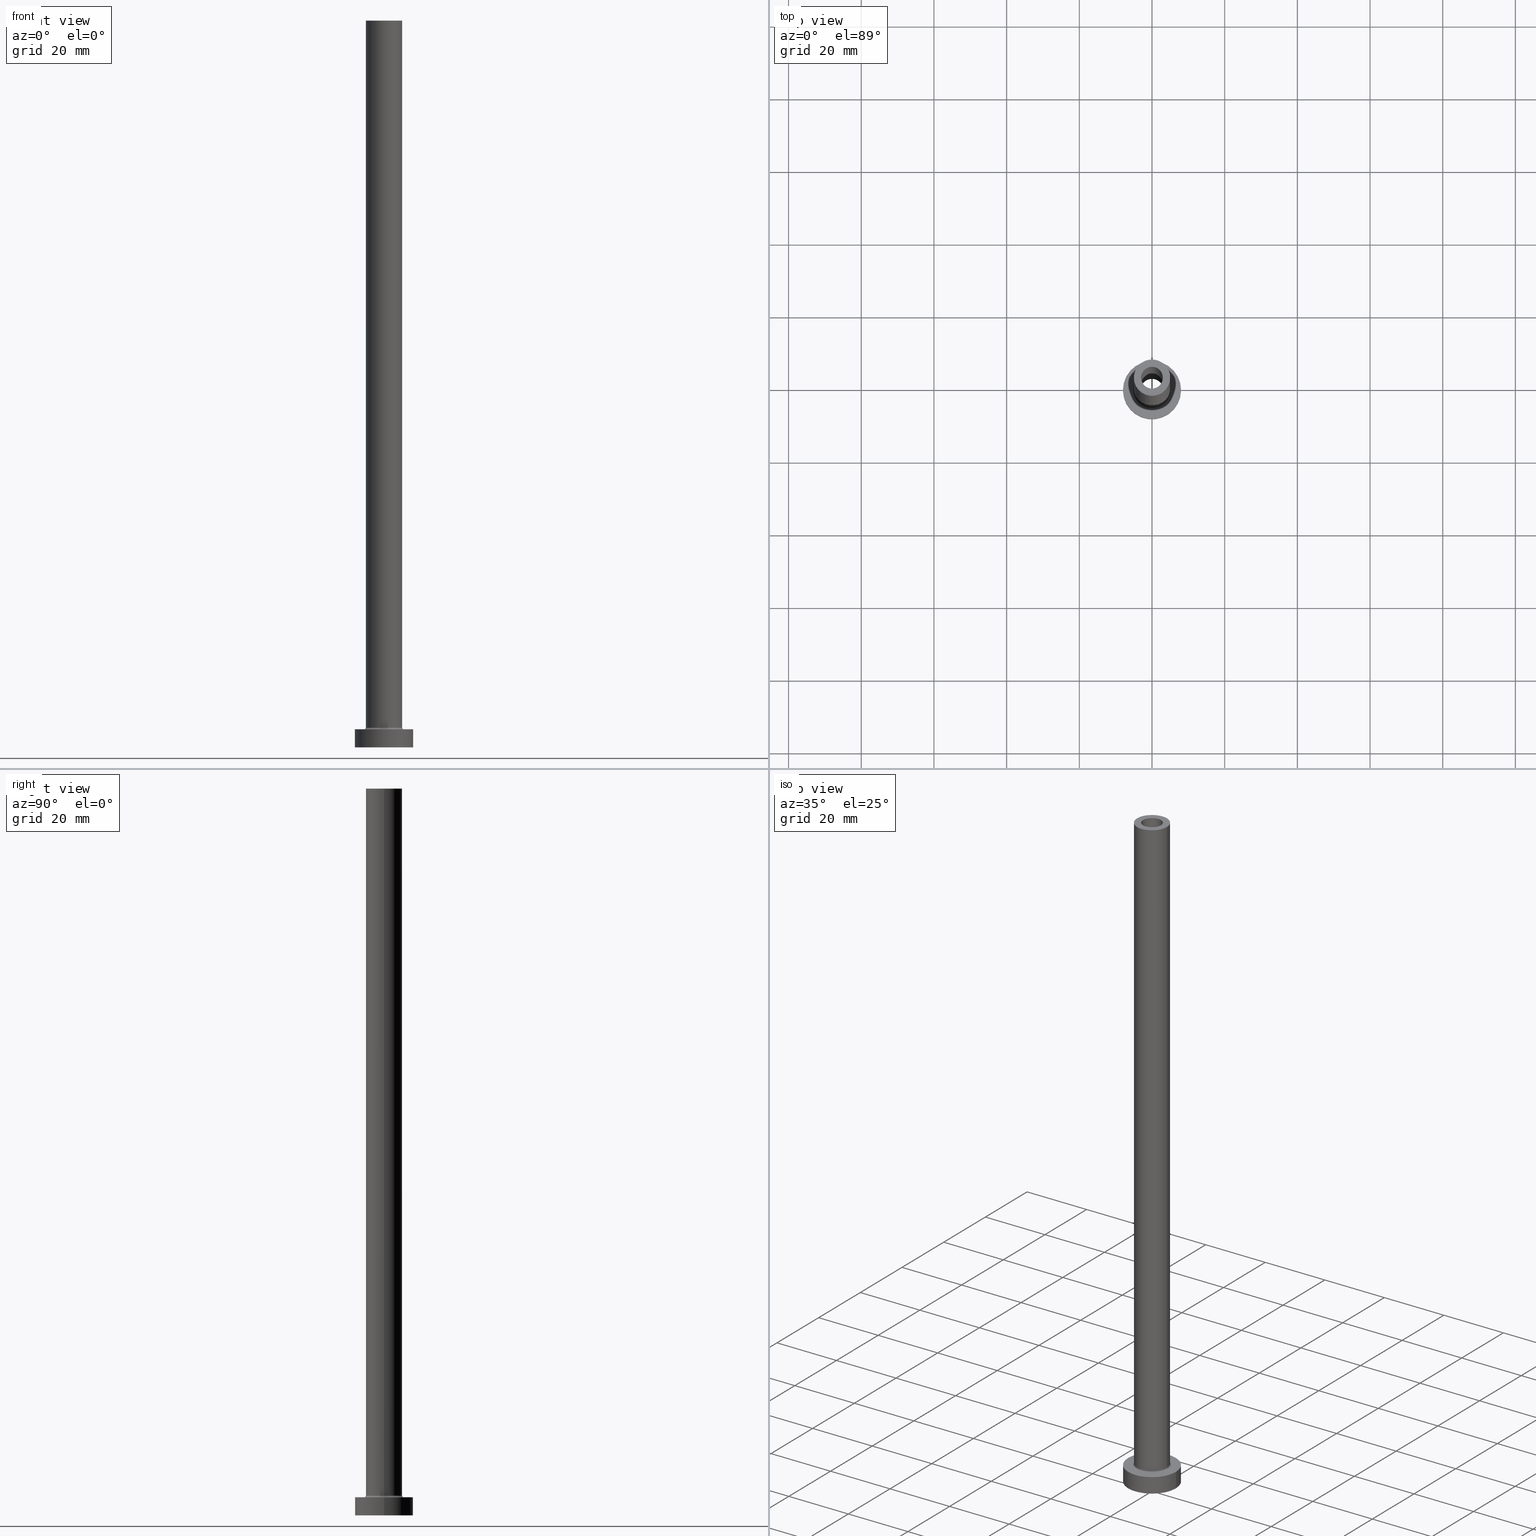
[diagram: canonical four-view strip — front | top / right | iso, engineering-drawing reading convention]
A machine part, canonical four-view strip (front | top / right | iso — engineering-drawing reading convention). The complete STEP part file that produces these views, byte-faithful:
ISO-10303-21;
HEADER;
FILE_DESCRIPTION (( 'STEP AP203' ),
    '1' );
FILE_NAME ('994f.STEP',
    '2023-02-13T09:13:47',
    ( '' ),
    ( '' ),
    'SwSTEP 2.0',
    'SolidWorks 2019',
    '' );
FILE_SCHEMA (( 'CONFIG_CONTROL_DESIGN' ));
ENDSEC;

DATA;
#1 = ORIENTED_EDGE ( 'NONE', *, *, #377, .F. ) ;
#2 = COORDINATED_UNIVERSAL_TIME_OFFSET ( 1, 0, .AHEAD. ) ;
#3 = FACE_OUTER_BOUND ( 'NONE', #280, .T. ) ;
#4 = CIRCLE ( 'NONE', #20, 3.000000000000000444 ) ;
#5 = CYLINDRICAL_SURFACE ( 'NONE', #429, 8.000000000000000000 ) ;
#6 = DIRECTION ( 'NONE',  ( 0.000000000000000000, 0.000000000000000000, -1.000000000000000000 ) ) ;
#7 = DIRECTION ( 'NONE',  ( 1.000000000000000000, 0.000000000000000000, 0.000000000000000000 ) ) ;
#8 = DIRECTION ( 'NONE',  ( -0.000000000000000000, -0.000000000000000000, -1.000000000000000000 ) ) ;
#9 = APPROVAL_STATUS ( 'not_yet_approved' ) ;
#10 = AXIS2_PLACEMENT_3D ( 'NONE', #53, #197, #333 ) ;
#11 = DIRECTION ( 'NONE',  ( -0.000000000000000000, -0.000000000000000000, -1.000000000000000000 ) ) ;
#12 = DIRECTION ( 'NONE',  ( 0.000000000000000000, 0.000000000000000000, 1.000000000000000000 ) ) ;
#13 = FACE_OUTER_BOUND ( 'NONE', #116, .T. ) ;
#14 = EDGE_LOOP ( 'NONE', ( #96, #445, #376, #342 ) ) ;
#15 = ADVANCED_FACE ( 'NONE', ( #322, #149 ), #220, .T. ) ;
#16 = CC_DESIGN_DATE_AND_TIME_ASSIGNMENT ( #162, #296, ( #50 ) ) ;
#17 = AXIS2_PLACEMENT_3D ( 'NONE', #236, #329, #225 ) ;
#18 = CARTESIAN_POINT ( 'NONE',  ( -3.150000000000000355, 0.000000000000000000, 0.000000000000000000 ) ) ;
#19 = DIRECTION ( 'NONE',  ( 0.000000000000000000, 0.000000000000000000, 1.000000000000000000 ) ) ;
#20 = AXIS2_PLACEMENT_3D ( 'NONE', #379, #19, #131 ) ;
#21 = EDGE_CURVE ( 'NONE', #122, #55, #346, .T. ) ;
#22 = LOCAL_TIME ( 10, 13, 47.00000000000000000, #332 ) ;
#23 = CARTESIAN_POINT ( 'NONE',  ( -8.000000000000000000, 0.000000000000000000, 0.000000000000000000 ) ) ;
#24 = EDGE_LOOP ( 'NONE', ( #287, #112 ) ) ;
#25 = CARTESIAN_POINT ( 'NONE',  ( 5.500000000000000000, 0.000000000000000000, 5.000000000000002665 ) ) ;
#26 = CARTESIAN_POINT ( 'NONE',  ( 0.000000000000000000, 0.000000000000000000, 155.0000000000000284 ) ) ;
#27 = CALENDAR_DATE ( 2023, 13, 2 ) ;
#28 = VERTEX_POINT ( 'NONE', #215 ) ;
#29 = TOROIDAL_SURFACE ( 'NONE', #99, 5.500000000000000000, 0.5000000000000000000 ) ;
#30 = ORIENTED_EDGE ( 'NONE', *, *, #120, .F. ) ;
#31 = MECHANICAL_CONTEXT ( 'NONE', #228, 'mechanical' ) ;
#32 = VERTEX_POINT ( 'NONE', #43 ) ;
#33 = PRODUCT_DEFINITION ( 'NEZN�M�', '', #319, #397 ) ;
#34 = DIRECTION ( 'NONE',  ( 1.000000000000000000, 0.000000000000000000, 0.000000000000000000 ) ) ;
#35 = AXIS2_PLACEMENT_3D ( 'NONE', #261, #86, #169 ) ;
#36 = APPROVAL_STATUS ( 'not_yet_approved' ) ;
#37 = CARTESIAN_POINT ( 'NONE',  ( 0.000000000000000000, 0.000000000000000000, 0.000000000000000000 ) ) ;
#38 = PERSON_AND_ORGANIZATION ( #391, #130 ) ;
#39 = CC_DESIGN_APPROVAL ( #160, ( #50 ) ) ;
#40 = DIRECTION ( 'NONE',  ( 1.000000000000000000, 0.000000000000000000, 0.000000000000000000 ) ) ;
#41 = EDGE_CURVE ( 'NONE', #231, #79, #201, .T. ) ;
#42 = CC_DESIGN_PERSON_AND_ORGANIZATION_ASSIGNMENT ( #375, #62, ( #33 ) ) ;
#43 = CARTESIAN_POINT ( 'NONE',  ( -3.000000000000000444, 0.000000000000000000, 155.0000000000000284 ) ) ;
#44 = CALENDAR_DATE ( 2023, 13, 2 ) ;
#45 = EDGE_LOOP ( 'NONE', ( #412, #30, #217, #173 ) ) ;
#46 = AXIS2_PLACEMENT_3D ( 'NONE', #409, #263, #227 ) ;
#47 = DIRECTION ( 'NONE',  ( 0.000000000000000000, 0.000000000000000000, -1.000000000000000000 ) ) ;
#48 = FACE_OUTER_BOUND ( 'NONE', #14, .T. ) ;
#49 = AXIS2_PLACEMENT_3D ( 'NONE', #154, #353, #34 ) ;
#50 = SECURITY_CLASSIFICATION ( '', '', #226 ) ;
#51 = DIRECTION ( 'NONE',  ( -0.000000000000000000, -0.000000000000000000, -1.000000000000000000 ) ) ;
#52 = DIRECTION ( 'NONE',  ( -1.000000000000000000, 0.000000000000000000, 0.000000000000000000 ) ) ;
#53 = CARTESIAN_POINT ( 'NONE',  ( -5.500000000000000000, 6.735557395310442023E-16, 5.500000000000005329 ) ) ;
#54 = CARTESIAN_POINT ( 'NONE',  ( 5.000000000000000000, 6.123233995736766282E-16, 5.500000000000005329 ) ) ;
#55 = VERTEX_POINT ( 'NONE', #109 ) ;
#56 = AXIS2_PLACEMENT_3D ( 'NONE', #394, #223, #302 ) ;
#57 = EDGE_CURVE ( 'NONE', #270, #175, #421, .T. ) ;
#58 = DATE_AND_TIME ( #190, #123 ) ;
#59 = LOCAL_TIME ( 10, 13, 47.00000000000000000, #347 ) ;
#60 = DIRECTION ( 'NONE',  ( -1.000000000000000000, 0.000000000000000000, 0.000000000000000000 ) ) ;
#61 = ORIENTED_EDGE ( 'NONE', *, *, #321, .F. ) ;
#62 = PERSON_AND_ORGANIZATION_ROLE ( 'creator' ) ;
#63 = VERTEX_POINT ( 'NONE', #163 ) ;
#64 = ADVANCED_BREP_SHAPE_REPRESENTATION ( '994f', ( #110, #315 ), #254 ) ;
#65 = ORIENTED_EDGE ( 'NONE', *, *, #181, .F. ) ;
#66 = AXIS2_PLACEMENT_3D ( 'NONE', #81, #221, #6 ) ;
#67 = APPLICATION_PROTOCOL_DEFINITION ( 'international standard', 'config_control_design', 1994, #228 ) ;
#68 = ORIENTED_EDGE ( 'NONE', *, *, #78, .F. ) ;
#69 = PRODUCT_RELATED_PRODUCT_CATEGORY ( 'detail', '', ( #152 ) ) ;
#70 = CARTESIAN_POINT ( 'NONE',  ( 3.150000000000000355, 3.857637417314163182E-16, 163.9095454429505594 ) ) ;
#71 = ORIENTED_EDGE ( 'NONE', *, *, #196, .F. ) ;
#72 = EDGE_CURVE ( 'NONE', #101, #204, #310, .T. ) ;
#73 = CALENDAR_DATE ( 2023, 13, 2 ) ;
#74 = DIRECTION ( 'NONE',  ( 1.000000000000000000, 0.000000000000000000, -0.000000000000000000 ) ) ;
#75 = CIRCLE ( 'NONE', #290, 3.000000000000000444 ) ;
#76 = DIRECTION ( 'NONE',  ( 1.000000000000000000, 0.000000000000000000, 0.000000000000000000 ) ) ;
#77 = EDGE_CURVE ( 'NONE', #270, #28, #127, .T. ) ;
#78 = EDGE_CURVE ( 'NONE', #177, #55, #125, .T. ) ;
#79 = VERTEX_POINT ( 'NONE', #100 ) ;
#80 = DIRECTION ( 'NONE',  ( 0.000000000000000000, 0.000000000000000000, 1.000000000000000000 ) ) ;
#81 = CARTESIAN_POINT ( 'NONE',  ( 5.500000000000000000, 0.000000000000000000, 5.500000000000005329 ) ) ;
#82 = TOROIDAL_SURFACE ( 'NONE', #460, 5.500000000000000000, 0.5000000000000000000 ) ;
#83 = ADVANCED_FACE ( 'NONE', ( #438, #272 ), #229, .F. ) ;
#84 = DIRECTION ( 'NONE',  ( 0.000000000000000000, 0.000000000000000000, 1.000000000000000000 ) ) ;
#85 = EDGE_CURVE ( 'NONE', #408, #451, #457, .T. ) ;
#86 = DIRECTION ( 'NONE',  ( 0.000000000000000000, 0.000000000000000000, 1.000000000000000000 ) ) ;
#87 = ORIENTED_EDGE ( 'NONE', *, *, #446, .F. ) ;
#88 = CARTESIAN_POINT ( 'NONE',  ( 0.000000000000000000, 0.000000000000000000, 5.000000000000000000 ) ) ;
#89 = DIRECTION ( 'NONE',  ( 1.000000000000000000, 0.000000000000000000, -0.000000000000000000 ) ) ;
#90 = CARTESIAN_POINT ( 'NONE',  ( -5.500000000000000000, 6.735557395310442023E-16, 5.000000000000002665 ) ) ;
#91 = ORIENTED_EDGE ( 'NONE', *, *, #340, .T. ) ;
#92 = AXIS2_PLACEMENT_3D ( 'NONE', #26, #305, #407 ) ;
#93 = CARTESIAN_POINT ( 'NONE',  ( 0.000000000000000000, 0.000000000000000000, 200.0000000000000000 ) ) ;
#94 = FACE_OUTER_BOUND ( 'NONE', #459, .T. ) ;
#95 = EDGE_LOOP ( 'NONE', ( #447, #156, #234, #314 ) ) ;
#96 = ORIENTED_EDGE ( 'NONE', *, *, #159, .F. ) ;
#97 = FACE_OUTER_BOUND ( 'NONE', #244, .T. ) ;
#98 = EDGE_CURVE ( 'NONE', #55, #122, #303, .T. ) ;
#99 = AXIS2_PLACEMENT_3D ( 'NONE', #382, #213, #76 ) ;
#100 = CARTESIAN_POINT ( 'NONE',  ( 8.000000000000000000, 9.797174393178825657E-16, 0.000000000000000000 ) ) ;
#101 = VERTEX_POINT ( 'NONE', #90 ) ;
#102 = EDGE_LOOP ( 'NONE', ( #71, #404, #199, #237 ) ) ;
#103 = DIRECTION ( 'NONE',  ( -1.000000000000000000, 0.000000000000000000, 0.000000000000000000 ) ) ;
#104 = CARTESIAN_POINT ( 'NONE',  ( 0.000000000000000000, 0.000000000000000000, 200.0000000000000000 ) ) ;
#105 = CARTESIAN_POINT ( 'NONE',  ( 5.000000000000000000, 6.123233995736766282E-16, 200.0000000000000000 ) ) ;
#106 = ORIENTED_EDGE ( 'NONE', *, *, #187, .F. ) ;
#107 = CIRCLE ( 'NONE', #49, 5.500000000000000000 ) ;
#108 = PERSON_AND_ORGANIZATION_ROLE ( 'design_owner' ) ;
#109 = CARTESIAN_POINT ( 'NONE',  ( -5.000000000000000000, 0.000000000000000000, 5.500000000000005329 ) ) ;
#110 = MANIFOLD_SOLID_BREP ( 'Odebrat vysunut�m4', #442 ) ;
#111 = DIRECTION ( 'NONE',  ( 1.000000000000000000, 0.000000000000000000, 0.000000000000000000 ) ) ;
#112 = ORIENTED_EDGE ( 'NONE', *, *, #238, .T. ) ;
#113 = DIRECTION ( 'NONE',  ( 0.000000000000000000, 0.000000000000000000, 1.000000000000000000 ) ) ;
#114 = AXIS2_PLACEMENT_3D ( 'NONE', #297, #12, #435 ) ;
#115 = ADVANCED_FACE ( 'NONE', ( #48 ), #5, .T. ) ;
#116 = EDGE_LOOP ( 'NONE', ( #308, #180, #211, #278 ) ) ;
#117 = CARTESIAN_POINT ( 'NONE',  ( -8.000000000000000000, 0.000000000000000000, 5.000000000000000000 ) ) ;
#118 = APPROVAL ( #399, 'NEUR�EN�' ) ;
#119 = CARTESIAN_POINT ( 'NONE',  ( -5.000000000000000000, 0.000000000000000000, 200.0000000000000000 ) ) ;
#120 = EDGE_CURVE ( 'NONE', #177, #453, #363, .T. ) ;
#121 = VECTOR ( 'NONE', #400, 1000.000000000000000 ) ;
#122 = VERTEX_POINT ( 'NONE', #54 ) ;
#123 = LOCAL_TIME ( 10, 13, 47.00000000000000000, #403 ) ;
#124 = FACE_OUTER_BOUND ( 'NONE', #102, .T. ) ;
#125 = LINE ( 'NONE', #119, #121 ) ;
#126 = CC_DESIGN_PERSON_AND_ORGANIZATION_ASSIGNMENT ( #456, #416, ( #319 ) ) ;
#127 = CIRCLE ( 'NONE', #114, 3.150000000000000355 ) ;
#128 = ADVANCED_FACE ( 'NONE', ( #212 ), #426, .T. ) ;
#129 = PLANE ( 'NONE',  #230 ) ;
#130 = ORGANIZATION ( 'NEUR�EN�', 'NEUR�EN�', '' ) ;
#131 = DIRECTION ( 'NONE',  ( 1.000000000000000000, 0.000000000000000000, 0.000000000000000000 ) ) ;
#132 = ORIENTED_EDGE ( 'NONE', *, *, #196, .T. ) ;
#133 = ORIENTED_EDGE ( 'NONE', *, *, #417, .F. ) ;
#134 =( NAMED_UNIT ( * ) SI_UNIT ( $, .STERADIAN. ) SOLID_ANGLE_UNIT ( ) );
#135 = ORIENTED_EDGE ( 'NONE', *, *, #425, .F. ) ;
#136 = AXIS2_PLACEMENT_3D ( 'NONE', #255, #240, #216 ) ;
#137 = CC_DESIGN_SECURITY_CLASSIFICATION ( #50, ( #319 ) ) ;
#138 = DIRECTION ( 'NONE',  ( 0.000000000000000000, 0.000000000000000000, 1.000000000000000000 ) ) ;
#139 = DIRECTION ( 'NONE',  ( 1.000000000000000000, 0.000000000000000000, 0.000000000000000000 ) ) ;
#140 = VERTEX_POINT ( 'NONE', #352 ) ;
#141 = CARTESIAN_POINT ( 'NONE',  ( 3.000000000000000444, 3.673940397442059868E-16, 200.0000000000000000 ) ) ;
#142 = ORIENTED_EDGE ( 'NONE', *, *, #72, .T. ) ;
#143 = DIRECTION ( 'NONE',  ( 1.000000000000000000, 0.000000000000000000, 0.000000000000000000 ) ) ;
#144 = PERSON_AND_ORGANIZATION_ROLE ( 'design_supplier' ) ;
#145 = VECTOR ( 'NONE', #11, 1000.000000000000000 ) ;
#146 = EDGE_CURVE ( 'NONE', #453, #122, #182, .T. ) ;
#147 = APPROVAL_ROLE ( '' ) ;
#148 = DIRECTION ( 'NONE',  ( 0.000000000000000000, 0.000000000000000000, 1.000000000000000000 ) ) ;
#149 = FACE_OUTER_BOUND ( 'NONE', #325, .T. ) ;
#150 = PERSON_AND_ORGANIZATION ( #391, #130 ) ;
#151 = CYLINDRICAL_SURFACE ( 'NONE', #136, 8.000000000000000000 ) ;
#152 = PRODUCT ( '994f', '994f', '', ( #31 ) ) ;
#153 = APPROVAL_DATE_TIME ( #430, #160 ) ;
#154 = CARTESIAN_POINT ( 'NONE',  ( 0.000000000000000000, 0.000000000000000000, 5.000000000000000000 ) ) ;
#155 = VECTOR ( 'NONE', #355, 1000.000000000000000 ) ;
#156 = ORIENTED_EDGE ( 'NONE', *, *, #187, .T. ) ;
#157 = LOCAL_TIME ( 10, 13, 47.00000000000000000, #2 ) ;
#158 = LINE ( 'NONE', #330, #381 ) ;
#159 = EDGE_CURVE ( 'NONE', #451, #79, #335, .T. ) ;
#160 = APPROVAL ( #9, 'NEUR�EN�' ) ;
#161 = LINE ( 'NONE', #439, #422 ) ;
#162 = DATE_AND_TIME ( #73, #157 ) ;
#163 = CARTESIAN_POINT ( 'NONE',  ( 3.000000000000000444, 3.673940397442059868E-16, 155.0000000000000284 ) ) ;
#164 = AXIS2_PLACEMENT_3D ( 'NONE', #219, #434, #358 ) ;
#165 = CARTESIAN_POINT ( 'NONE',  ( 8.000000000000000000, 9.797174393178825657E-16, 5.000000000000000000 ) ) ;
#166 = CIRCLE ( 'NONE', #410, 3.000000000000000444 ) ;
#167 = FACE_BOUND ( 'NONE', #259, .T. ) ;
#168 = DATE_AND_TIME ( #27, #59 ) ;
#169 = DIRECTION ( 'NONE',  ( 1.000000000000000000, 0.000000000000000000, 0.000000000000000000 ) ) ;
#170 = FACE_OUTER_BOUND ( 'NONE', #95, .T. ) ;
#171 = AXIS2_PLACEMENT_3D ( 'NONE', #461, #148, #286 ) ;
#172 = FACE_OUTER_BOUND ( 'NONE', #356, .T. ) ;
#173 = ORIENTED_EDGE ( 'NONE', *, *, #98, .T. ) ;
#174 = ADVANCED_FACE ( 'NONE', ( #167, #443 ), #129, .T. ) ;
#175 = VERTEX_POINT ( 'NONE', #18 ) ;
#176 = DIRECTION ( 'NONE',  ( -0.000000000000000000, -0.000000000000000000, -1.000000000000000000 ) ) ;
#177 = VERTEX_POINT ( 'NONE', #360 ) ;
#178 = AXIS2_PLACEMENT_3D ( 'NONE', #192, #362, #388 ) ;
#179 = DIRECTION ( 'NONE',  ( 0.000000000000000000, 0.000000000000000000, 1.000000000000000000 ) ) ;
#180 = ORIENTED_EDGE ( 'NONE', *, *, #21, .F. ) ;
#181 = EDGE_CURVE ( 'NONE', #408, #231, #257, .T. ) ;
#182 = LINE ( 'NONE', #282, #433 ) ;
#183 = DIRECTION ( 'NONE',  ( -0.000000000000000000, -0.000000000000000000, -1.000000000000000000 ) ) ;
#184 = EDGE_LOOP ( 'NONE', ( #274, #132, #348, #135 ) ) ;
#185 = LINE ( 'NONE', #70, #155 ) ;
#186 = CC_DESIGN_APPROVAL ( #118, ( #319 ) ) ;
#187 = EDGE_CURVE ( 'NONE', #28, #270, #341, .T. ) ;
#188 = CARTESIAN_POINT ( 'NONE',  ( 0.000000000000000000, 0.000000000000000000, 163.9095454429505594 ) ) ;
#189 = CARTESIAN_POINT ( 'NONE',  ( 0.000000000000000000, 0.000000000000000000, 0.000000000000000000 ) ) ;
#190 = CALENDAR_DATE ( 2023, 13, 2 ) ;
#191 = PRODUCT_DEFINITION_SHAPE ( 'NONE', 'NONE',  #33 ) ;
#192 = CARTESIAN_POINT ( 'NONE',  ( 0.000000000000000000, 0.000000000000000000, 155.0000000000000284 ) ) ;
#193 = APPROVAL_PERSON_ORGANIZATION ( #214, #271, #147 ) ;
#194 = DIRECTION ( 'NONE',  ( 1.000000000000000000, 0.000000000000000000, 0.000000000000000000 ) ) ;
#195 = SHAPE_DEFINITION_REPRESENTATION ( #191, #64 ) ;
#196 = EDGE_CURVE ( 'NONE', #249, #63, #158, .T. ) ;
#197 = DIRECTION ( 'NONE',  ( 1.224646799147353207E-16, 1.000000000000000000, -0.000000000000000000 ) ) ;
#198 = AXIS2_PLACEMENT_3D ( 'NONE', #437, #51, #7 ) ;
#199 = ORIENTED_EDGE ( 'NONE', *, *, #425, .T. ) ;
#200 = EDGE_CURVE ( 'NONE', #55, #101, #432, .T. ) ;
#201 = CIRCLE ( 'NONE', #250, 8.000000000000000000 ) ;
#202 = ADVANCED_FACE ( 'NONE', ( #300 ), #268, .T. ) ;
#203 = CARTESIAN_POINT ( 'NONE',  ( 0.000000000000000000, 0.000000000000000000, 5.000000000000000000 ) ) ;
#204 = VERTEX_POINT ( 'NONE', #25 ) ;
#205 = AXIS2_PLACEMENT_3D ( 'NONE', #427, #113, #324 ) ;
#206 = ADVANCED_FACE ( 'NONE', ( #97 ), #285, .F. ) ;
#207 = EDGE_LOOP ( 'NONE', ( #419, #354 ) ) ;
#208 = FACE_BOUND ( 'NONE', #345, .T. ) ;
#209 = ORIENTED_EDGE ( 'NONE', *, *, #77, .F. ) ;
#210 = AXIS2_PLACEMENT_3D ( 'NONE', #269, #138, #233 ) ;
#211 = ORIENTED_EDGE ( 'NONE', *, *, #417, .T. ) ;
#212 = FACE_OUTER_BOUND ( 'NONE', #45, .T. ) ;
#213 = DIRECTION ( 'NONE',  ( 0.000000000000000000, 0.000000000000000000, 1.000000000000000000 ) ) ;
#214 = PERSON_AND_ORGANIZATION ( #391, #130 ) ;
#215 = CARTESIAN_POINT ( 'NONE',  ( 3.150000000000000355, 3.857637417314163182E-16, 155.0000000000000284 ) ) ;
#216 = DIRECTION ( 'NONE',  ( -1.000000000000000000, 0.000000000000000000, 0.000000000000000000 ) ) ;
#217 = ORIENTED_EDGE ( 'NONE', *, *, #78, .T. ) ;
#218 = VECTOR ( 'NONE', #8, 1000.000000000000000 ) ;
#219 = CARTESIAN_POINT ( 'NONE',  ( 0.000000000000000000, 0.000000000000000000, 5.500000000000005329 ) ) ;
#220 = PLANE ( 'NONE',  #448 ) ;
#221 = DIRECTION ( 'NONE',  ( 0.000000000000000000, -1.000000000000000000, 0.000000000000000000 ) ) ;
#222 = AXIS2_PLACEMENT_3D ( 'NONE', #104, #241, #60 ) ;
#223 = DIRECTION ( 'NONE',  ( 0.000000000000000000, 0.000000000000000000, 1.000000000000000000 ) ) ;
#224 = APPROVAL_ROLE ( '' ) ;
#225 = DIRECTION ( 'NONE',  ( 1.000000000000000000, 0.000000000000000000, 0.000000000000000000 ) ) ;
#226 = SECURITY_CLASSIFICATION_LEVEL ( 'unclassified' ) ;
#227 = DIRECTION ( 'NONE',  ( 1.000000000000000000, 0.000000000000000000, -0.000000000000000000 ) ) ;
#228 = APPLICATION_CONTEXT ( 'configuration controlled 3d designs of mechanical parts and assemblies' ) ;
#229 = PLANE ( 'NONE',  #46 ) ;
#230 = AXIS2_PLACEMENT_3D ( 'NONE', #203, #301, #89 ) ;
#231 = VERTEX_POINT ( 'NONE', #23 ) ;
#232 = VECTOR ( 'NONE', #383, 1000.000000000000000 ) ;
#233 = DIRECTION ( 'NONE',  ( 1.000000000000000000, 0.000000000000000000, -0.000000000000000000 ) ) ;
#234 = ORIENTED_EDGE ( 'NONE', *, *, #57, .T. ) ;
#235 = CC_DESIGN_DATE_AND_TIME_ASSIGNMENT ( #168, #368, ( #33 ) ) ;
#236 = CARTESIAN_POINT ( 'NONE',  ( 0.000000000000000000, 0.000000000000000000, 5.500000000000005329 ) ) ;
#237 = ORIENTED_EDGE ( 'NONE', *, *, #238, .F. ) ;
#238 = EDGE_CURVE ( 'NONE', #63, #32, #298, .T. ) ;
#239 = ORIENTED_EDGE ( 'NONE', *, *, #57, .F. ) ;
#240 = DIRECTION ( 'NONE',  ( -0.000000000000000000, -0.000000000000000000, -1.000000000000000000 ) ) ;
#241 = DIRECTION ( 'NONE',  ( 0.000000000000000000, 0.000000000000000000, -1.000000000000000000 ) ) ;
#242 = ADVANCED_FACE ( 'NONE', ( #208, #172 ), #339, .F. ) ;
#243 =( LENGTH_UNIT ( ) NAMED_UNIT ( * ) SI_UNIT ( .MILLI., .METRE. ) );
#244 = EDGE_LOOP ( 'NONE', ( #415, #91, #436, #239 ) ) ;
#245 = CIRCLE ( 'NONE', #373, 5.000000000000000000 ) ;
#246 = APPROVAL_PERSON_ORGANIZATION ( #150, #160, #224 ) ;
#247 = APPLICATION_PROTOCOL_DEFINITION ( 'international standard', 'config_control_design', 1994, #252 ) ;
#248 = CARTESIAN_POINT ( 'NONE',  ( -3.150000000000000355, 0.000000000000000000, 163.9095454429505594 ) ) ;
#249 = VERTEX_POINT ( 'NONE', #141 ) ;
#250 = AXIS2_PLACEMENT_3D ( 'NONE', #189, #291, #317 ) ;
#251 = VERTEX_POINT ( 'NONE', #279 ) ;
#252 = APPLICATION_CONTEXT ( 'configuration controlled 3d designs of mechanical parts and assemblies' ) ;
#253 = PERSON_AND_ORGANIZATION_ROLE ( 'classification_officer' ) ;
#254 =( GEOMETRIC_REPRESENTATION_CONTEXT ( 3 ) GLOBAL_UNCERTAINTY_ASSIGNED_CONTEXT ( ( #366 ) ) GLOBAL_UNIT_ASSIGNED_CONTEXT ( ( #243, #277, #134 ) ) REPRESENTATION_CONTEXT ( 'NONE', 'WORKASPACE' ) );
#255 = CARTESIAN_POINT ( 'NONE',  ( 0.000000000000000000, 0.000000000000000000, 5.000000000000000000 ) ) ;
#256 = ORIENTED_EDGE ( 'NONE', *, *, #405, .F. ) ;
#257 = LINE ( 'NONE', #292, #218 ) ;
#258 = ADVANCED_FACE ( 'NONE', ( #170 ), #276, .F. ) ;
#259 = EDGE_LOOP ( 'NONE', ( #386, #142 ) ) ;
#260 = CARTESIAN_POINT ( 'NONE',  ( 0.000000000000000000, 0.000000000000000000, 155.0000000000000284 ) ) ;
#261 = CARTESIAN_POINT ( 'NONE',  ( 0.000000000000000000, 0.000000000000000000, 5.000000000000000000 ) ) ;
#262 = LOCAL_TIME ( 10, 13, 47.00000000000000000, #424 ) ;
#263 = DIRECTION ( 'NONE',  ( 0.000000000000000000, 0.000000000000000000, 1.000000000000000000 ) ) ;
#264 = EDGE_LOOP ( 'NONE', ( #312, #378 ) ) ;
#265 = CIRCLE ( 'NONE', #171, 8.000000000000000000 ) ;
#266 = CYLINDRICAL_SURFACE ( 'NONE', #222, 3.000000000000000444 ) ;
#267 = ORIENTED_EDGE ( 'NONE', *, *, #41, .F. ) ;
#268 = CYLINDRICAL_SURFACE ( 'NONE', #401, 5.000000000000000000 ) ;
#269 = CARTESIAN_POINT ( 'NONE',  ( 0.000000000000000000, 0.000000000000000000, 0.000000000000000000 ) ) ;
#270 = VERTEX_POINT ( 'NONE', #418 ) ;
#271 = APPROVAL ( #36, 'NEUR�EN�' ) ;
#272 = FACE_OUTER_BOUND ( 'NONE', #374, .T. ) ;
#273 = DIRECTION ( 'NONE',  ( 0.000000000000000000, 0.000000000000000000, -1.000000000000000000 ) ) ;
#274 = ORIENTED_EDGE ( 'NONE', *, *, #293, .T. ) ;
#275 = CIRCLE ( 'NONE', #205, 8.000000000000000000 ) ;
#276 = CYLINDRICAL_SURFACE ( 'NONE', #396, 3.150000000000000355 ) ;
#277 =( NAMED_UNIT ( * ) PLANE_ANGLE_UNIT ( ) SI_UNIT ( $, .RADIAN. ) );
#278 = ORIENTED_EDGE ( 'NONE', *, *, #72, .F. ) ;
#279 = CARTESIAN_POINT ( 'NONE',  ( -3.000000000000000444, 0.000000000000000000, 200.0000000000000000 ) ) ;
#280 = EDGE_LOOP ( 'NONE', ( #316, #365, #306, #65 ) ) ;
#281 = PERSON_AND_ORGANIZATION ( #391, #130 ) ;
#282 = CARTESIAN_POINT ( 'NONE',  ( 5.000000000000000000, 6.123233995736766282E-16, 200.0000000000000000 ) ) ;
#283 = CIRCLE ( 'NONE', #198, 3.150000000000000355 ) ;
#284 = ADVANCED_FACE ( 'NONE', ( #372 ), #266, .F. ) ;
#285 = CYLINDRICAL_SURFACE ( 'NONE', #289, 3.150000000000000355 ) ;
#286 = DIRECTION ( 'NONE',  ( 1.000000000000000000, 0.000000000000000000, 0.000000000000000000 ) ) ;
#287 = ORIENTED_EDGE ( 'NONE', *, *, #413, .T. ) ;
#288 = EDGE_LOOP ( 'NONE', ( #256, #327, #371, #68 ) ) ;
#289 = AXIS2_PLACEMENT_3D ( 'NONE', #188, #458, #313 ) ;
#290 = AXIS2_PLACEMENT_3D ( 'NONE', #260, #84, #393 ) ;
#291 = DIRECTION ( 'NONE',  ( 0.000000000000000000, 0.000000000000000000, 1.000000000000000000 ) ) ;
#292 = CARTESIAN_POINT ( 'NONE',  ( -8.000000000000000000, 0.000000000000000000, 5.000000000000000000 ) ) ;
#293 = EDGE_CURVE ( 'NONE', #251, #249, #4, .T. ) ;
#294 = DIRECTION ( 'NONE',  ( -0.000000000000000000, -0.000000000000000000, -1.000000000000000000 ) ) ;
#295 = DIRECTION ( 'NONE',  ( 0.000000000000000000, 0.000000000000000000, -1.000000000000000000 ) ) ;
#296 = DATE_TIME_ROLE ( 'classification_date' ) ;
#297 = CARTESIAN_POINT ( 'NONE',  ( 0.000000000000000000, 0.000000000000000000, 155.0000000000000284 ) ) ;
#298 = CIRCLE ( 'NONE', #92, 3.000000000000000444 ) ;
#299 = ADVANCED_FACE ( 'NONE', ( #94 ), #29, .F. ) ;
#300 = FACE_OUTER_BOUND ( 'NONE', #288, .T. ) ;
#301 = DIRECTION ( 'NONE',  ( 0.000000000000000000, 0.000000000000000000, 1.000000000000000000 ) ) ;
#302 = DIRECTION ( 'NONE',  ( 1.000000000000000000, 0.000000000000000000, 0.000000000000000000 ) ) ;
#303 = CIRCLE ( 'NONE', #17, 5.000000000000000000 ) ;
#304 = PERSON_AND_ORGANIZATION ( #391, #130 ) ;
#305 = DIRECTION ( 'NONE',  ( 0.000000000000000000, 0.000000000000000000, 1.000000000000000000 ) ) ;
#306 = ORIENTED_EDGE ( 'NONE', *, *, #377, .T. ) ;
#307 = CC_DESIGN_PERSON_AND_ORGANIZATION_ASSIGNMENT ( #281, #144, ( #319 ) ) ;
#308 = ORIENTED_EDGE ( 'NONE', *, *, #200, .F. ) ;
#309 = DIRECTION ( 'NONE',  ( -0.000000000000000000, -0.000000000000000000, -1.000000000000000000 ) ) ;
#310 = CIRCLE ( 'NONE', #326, 5.500000000000000000 ) ;
#311 = CALENDAR_DATE ( 2023, 13, 2 ) ;
#312 = ORIENTED_EDGE ( 'NONE', *, *, #293, .F. ) ;
#313 = DIRECTION ( 'NONE',  ( -1.000000000000000000, 0.000000000000000000, 0.000000000000000000 ) ) ;
#314 = ORIENTED_EDGE ( 'NONE', *, *, #446, .T. ) ;
#315 = AXIS2_PLACEMENT_3D ( 'NONE', #349, #179, #143 ) ;
#316 = ORIENTED_EDGE ( 'NONE', *, *, #361, .F. ) ;
#317 = DIRECTION ( 'NONE',  ( 1.000000000000000000, 0.000000000000000000, 0.000000000000000000 ) ) ;
#318 = CARTESIAN_POINT ( 'NONE',  ( 0.000000000000000000, 0.000000000000000000, 200.0000000000000000 ) ) ;
#319 = PRODUCT_DEFINITION_FORMATION_WITH_SPECIFIED_SOURCE ( 'LIBOVOLN�', '', #152, .NOT_KNOWN. ) ;
#320 = DIRECTION ( 'NONE',  ( 0.000000000000000000, 0.000000000000000000, 1.000000000000000000 ) ) ;
#321 = EDGE_CURVE ( 'NONE', #140, #175, #357, .T. ) ;
#322 = FACE_BOUND ( 'NONE', #264, .T. ) ;
#323 = DIRECTION ( 'NONE',  ( -0.000000000000000000, -0.000000000000000000, -1.000000000000000000 ) ) ;
#324 = DIRECTION ( 'NONE',  ( 1.000000000000000000, 0.000000000000000000, 0.000000000000000000 ) ) ;
#325 = EDGE_LOOP ( 'NONE', ( #389, #350 ) ) ;
#326 = AXIS2_PLACEMENT_3D ( 'NONE', #88, #309, #194 ) ;
#327 = ORIENTED_EDGE ( 'NONE', *, *, #146, .T. ) ;
#328 = CARTESIAN_POINT ( 'NONE',  ( 0.000000000000000000, 0.000000000000000000, 200.0000000000000000 ) ) ;
#329 = DIRECTION ( 'NONE',  ( 0.000000000000000000, 0.000000000000000000, 1.000000000000000000 ) ) ;
#330 = CARTESIAN_POINT ( 'NONE',  ( 3.000000000000000444, 3.673940397442059868E-16, 200.0000000000000000 ) ) ;
#331 = CC_DESIGN_PERSON_AND_ORGANIZATION_ASSIGNMENT ( #304, #253, ( #50 ) ) ;
#332 = COORDINATED_UNIVERSAL_TIME_OFFSET ( 1, 0, .AHEAD. ) ;
#333 = DIRECTION ( 'NONE',  ( -1.000000000000000000, 1.224646799147351482E-16, 0.000000000000000000 ) ) ;
#334 = CIRCLE ( 'NONE', #66, 0.5000000000000004441 ) ;
#335 = LINE ( 'NONE', #336, #145 ) ;
#336 = CARTESIAN_POINT ( 'NONE',  ( 8.000000000000000000, 9.797174393178825657E-16, 5.000000000000000000 ) ) ;
#337 = APPROVAL_ROLE ( '' ) ;
#338 = EDGE_CURVE ( 'NONE', #204, #101, #107, .T. ) ;
#339 = PLANE ( 'NONE',  #210 ) ;
#340 = EDGE_CURVE ( 'NONE', #28, #140, #185, .T. ) ;
#341 = CIRCLE ( 'NONE', #178, 3.150000000000000355 ) ;
#342 = ORIENTED_EDGE ( 'NONE', *, *, #41, .T. ) ;
#343 = APPROVAL_DATE_TIME ( #58, #118 ) ;
#344 = EDGE_CURVE ( 'NONE', #249, #251, #166, .T. ) ;
#345 = EDGE_LOOP ( 'NONE', ( #87, #61 ) ) ;
#346 = CIRCLE ( 'NONE', #164, 5.000000000000000000 ) ;
#347 = COORDINATED_UNIVERSAL_TIME_OFFSET ( 1, 0, .AHEAD. ) ;
#348 = ORIENTED_EDGE ( 'NONE', *, *, #413, .F. ) ;
#349 = CARTESIAN_POINT ( 'NONE',  ( 0.000000000000000000, 0.000000000000000000, 0.000000000000000000 ) ) ;
#350 = ORIENTED_EDGE ( 'NONE', *, *, #405, .T. ) ;
#351 = AXIS2_PLACEMENT_3D ( 'NONE', #37, #183, #111 ) ;
#352 = CARTESIAN_POINT ( 'NONE',  ( 3.150000000000000355, 3.857637417314163182E-16, 0.000000000000000000 ) ) ;
#353 = DIRECTION ( 'NONE',  ( -0.000000000000000000, -0.000000000000000000, -1.000000000000000000 ) ) ;
#354 = ORIENTED_EDGE ( 'NONE', *, *, #361, .T. ) ;
#355 = DIRECTION ( 'NONE',  ( 0.000000000000000000, 0.000000000000000000, -1.000000000000000000 ) ) ;
#356 = EDGE_LOOP ( 'NONE', ( #267, #1 ) ) ;
#357 = CIRCLE ( 'NONE', #351, 3.150000000000000355 ) ;
#358 = DIRECTION ( 'NONE',  ( 1.000000000000000000, 0.000000000000000000, 0.000000000000000000 ) ) ;
#359 = DIRECTION ( 'NONE',  ( 1.000000000000000000, 0.000000000000000000, 0.000000000000000000 ) ) ;
#360 = CARTESIAN_POINT ( 'NONE',  ( -5.000000000000000000, 0.000000000000000000, 200.0000000000000000 ) ) ;
#361 = EDGE_CURVE ( 'NONE', #451, #408, #265, .T. ) ;
#362 = DIRECTION ( 'NONE',  ( 0.000000000000000000, 0.000000000000000000, 1.000000000000000000 ) ) ;
#363 = CIRCLE ( 'NONE', #56, 5.000000000000000000 ) ;
#364 = CARTESIAN_POINT ( 'NONE',  ( 0.000000000000000000, 0.000000000000000000, 5.000000000000000000 ) ) ;
#365 = ORIENTED_EDGE ( 'NONE', *, *, #159, .T. ) ;
#366 = UNCERTAINTY_MEASURE_WITH_UNIT (LENGTH_MEASURE( 1.000000000000000082E-05 ), #243, 'distance_accuracy_value', 'NONE');
#367 = CC_DESIGN_APPROVAL ( #271, ( #33 ) ) ;
#368 = DATE_TIME_ROLE ( 'creation_date' ) ;
#369 = CC_DESIGN_PERSON_AND_ORGANIZATION_ASSIGNMENT ( #38, #108, ( #152 ) ) ;
#370 = DIRECTION ( 'NONE',  ( -1.000000000000000000, 0.000000000000000000, 0.000000000000000000 ) ) ;
#371 = ORIENTED_EDGE ( 'NONE', *, *, #21, .T. ) ;
#372 = FACE_OUTER_BOUND ( 'NONE', #184, .T. ) ;
#373 = AXIS2_PLACEMENT_3D ( 'NONE', #328, #80, #359 ) ;
#374 = EDGE_LOOP ( 'NONE', ( #209, #106 ) ) ;
#375 = PERSON_AND_ORGANIZATION ( #391, #130 ) ;
#376 = ORIENTED_EDGE ( 'NONE', *, *, #181, .T. ) ;
#377 = EDGE_CURVE ( 'NONE', #79, #231, #275, .T. ) ;
#378 = ORIENTED_EDGE ( 'NONE', *, *, #344, .F. ) ;
#379 = CARTESIAN_POINT ( 'NONE',  ( 0.000000000000000000, 0.000000000000000000, 200.0000000000000000 ) ) ;
#380 = ORIENTED_EDGE ( 'NONE', *, *, #200, .T. ) ;
#381 = VECTOR ( 'NONE', #392, 1000.000000000000000 ) ;
#382 = CARTESIAN_POINT ( 'NONE',  ( 0.000000000000000000, 0.000000000000000000, 5.500000000000005329 ) ) ;
#383 = DIRECTION ( 'NONE',  ( 0.000000000000000000, 0.000000000000000000, -1.000000000000000000 ) ) ;
#384 = ADVANCED_FACE ( 'NONE', ( #3 ), #151, .T. ) ;
#385 = CARTESIAN_POINT ( 'NONE',  ( 0.000000000000000000, 0.000000000000000000, 200.0000000000000000 ) ) ;
#386 = ORIENTED_EDGE ( 'NONE', *, *, #338, .T. ) ;
#387 = DIRECTION ( 'NONE',  ( 0.000000000000000000, 0.000000000000000000, 1.000000000000000000 ) ) ;
#388 = DIRECTION ( 'NONE',  ( 1.000000000000000000, 0.000000000000000000, 0.000000000000000000 ) ) ;
#389 = ORIENTED_EDGE ( 'NONE', *, *, #120, .T. ) ;
#390 = DIRECTION ( 'NONE',  ( -1.000000000000000000, 0.000000000000000000, 0.000000000000000000 ) ) ;
#391 = PERSON ( 'NEUR�EN�', 'NEUR�EN�', 'NEUR�EN�', ('NEUR�EN�'), ('NEUR�EN�'), ('NEUR�EN�') ) ;
#392 = DIRECTION ( 'NONE',  ( 0.000000000000000000, 0.000000000000000000, -1.000000000000000000 ) ) ;
#393 = DIRECTION ( 'NONE',  ( 1.000000000000000000, 0.000000000000000000, 0.000000000000000000 ) ) ;
#394 = CARTESIAN_POINT ( 'NONE',  ( 0.000000000000000000, 0.000000000000000000, 200.0000000000000000 ) ) ;
#395 = ORIENTED_EDGE ( 'NONE', *, *, #98, .F. ) ;
#396 = AXIS2_PLACEMENT_3D ( 'NONE', #414, #273, #449 ) ;
#397 = DESIGN_CONTEXT ( 'detailed design', #252, 'design' ) ;
#398 = CYLINDRICAL_SURFACE ( 'NONE', #444, 3.000000000000000444 ) ;
#399 = APPROVAL_STATUS ( 'not_yet_approved' ) ;
#400 = DIRECTION ( 'NONE',  ( -0.000000000000000000, -0.000000000000000000, -1.000000000000000000 ) ) ;
#401 = AXIS2_PLACEMENT_3D ( 'NONE', #93, #406, #370 ) ;
#402 = ADVANCED_FACE ( 'NONE', ( #124 ), #398, .F. ) ;
#403 = COORDINATED_UNIVERSAL_TIME_OFFSET ( 1, 0, .AHEAD. ) ;
#404 = ORIENTED_EDGE ( 'NONE', *, *, #344, .T. ) ;
#405 = EDGE_CURVE ( 'NONE', #453, #177, #245, .T. ) ;
#406 = DIRECTION ( 'NONE',  ( -0.000000000000000000, -0.000000000000000000, -1.000000000000000000 ) ) ;
#407 = DIRECTION ( 'NONE',  ( 1.000000000000000000, 0.000000000000000000, 0.000000000000000000 ) ) ;
#408 = VERTEX_POINT ( 'NONE', #117 ) ;
#409 = CARTESIAN_POINT ( 'NONE',  ( 0.000000000000000000, 0.000000000000000000, 155.0000000000000284 ) ) ;
#410 = AXIS2_PLACEMENT_3D ( 'NONE', #318, #320, #40 ) ;
#411 = APPROVAL_DATE_TIME ( #450, #271 ) ;
#412 = ORIENTED_EDGE ( 'NONE', *, *, #146, .F. ) ;
#413 = EDGE_CURVE ( 'NONE', #32, #63, #75, .T. ) ;
#414 = CARTESIAN_POINT ( 'NONE',  ( 0.000000000000000000, 0.000000000000000000, 163.9095454429505594 ) ) ;
#415 = ORIENTED_EDGE ( 'NONE', *, *, #77, .T. ) ;
#416 = PERSON_AND_ORGANIZATION_ROLE ( 'creator' ) ;
#417 = EDGE_CURVE ( 'NONE', #122, #204, #334, .T. ) ;
#418 = CARTESIAN_POINT ( 'NONE',  ( -3.150000000000000355, 0.000000000000000000, 155.0000000000000284 ) ) ;
#419 = ORIENTED_EDGE ( 'NONE', *, *, #85, .T. ) ;
#420 = DIRECTION ( 'NONE',  ( 0.000000000000000000, 0.000000000000000000, 1.000000000000000000 ) ) ;
#421 = LINE ( 'NONE', #248, #232 ) ;
#422 = VECTOR ( 'NONE', #295, 1000.000000000000000 ) ;
#423 = AXIS2_PLACEMENT_3D ( 'NONE', #385, #176, #103 ) ;
#424 = COORDINATED_UNIVERSAL_TIME_OFFSET ( 1, 0, .AHEAD. ) ;
#425 = EDGE_CURVE ( 'NONE', #251, #32, #161, .T. ) ;
#426 = CYLINDRICAL_SURFACE ( 'NONE', #423, 5.000000000000000000 ) ;
#427 = CARTESIAN_POINT ( 'NONE',  ( 0.000000000000000000, 0.000000000000000000, 0.000000000000000000 ) ) ;
#428 = CARTESIAN_POINT ( 'NONE',  ( 0.000000000000000000, 0.000000000000000000, 200.0000000000000000 ) ) ;
#429 = AXIS2_PLACEMENT_3D ( 'NONE', #364, #294, #52 ) ;
#430 = DATE_AND_TIME ( #44, #22 ) ;
#431 = CARTESIAN_POINT ( 'NONE',  ( 0.000000000000000000, 0.000000000000000000, 200.0000000000000000 ) ) ;
#432 = CIRCLE ( 'NONE', #10, 0.5000000000000004441 ) ;
#433 = VECTOR ( 'NONE', #323, 1000.000000000000000 ) ;
#434 = DIRECTION ( 'NONE',  ( 0.000000000000000000, 0.000000000000000000, 1.000000000000000000 ) ) ;
#435 = DIRECTION ( 'NONE',  ( 1.000000000000000000, 0.000000000000000000, 0.000000000000000000 ) ) ;
#436 = ORIENTED_EDGE ( 'NONE', *, *, #321, .T. ) ;
#437 = CARTESIAN_POINT ( 'NONE',  ( 0.000000000000000000, 0.000000000000000000, 0.000000000000000000 ) ) ;
#438 = FACE_BOUND ( 'NONE', #24, .T. ) ;
#439 = CARTESIAN_POINT ( 'NONE',  ( -3.000000000000000444, 0.000000000000000000, 200.0000000000000000 ) ) ;
#440 = APPROVAL_PERSON_ORGANIZATION ( #441, #118, #337 ) ;
#441 = PERSON_AND_ORGANIZATION ( #391, #130 ) ;
#442 = CLOSED_SHELL ( 'NONE', ( #284, #206, #299, #202, #384, #115, #174, #242, #128, #15, #452, #258, #83, #402 ) ) ;
#443 = FACE_OUTER_BOUND ( 'NONE', #207, .T. ) ;
#444 = AXIS2_PLACEMENT_3D ( 'NONE', #431, #47, #390 ) ;
#445 = ORIENTED_EDGE ( 'NONE', *, *, #85, .F. ) ;
#446 = EDGE_CURVE ( 'NONE', #175, #140, #283, .T. ) ;
#447 = ORIENTED_EDGE ( 'NONE', *, *, #340, .F. ) ;
#448 = AXIS2_PLACEMENT_3D ( 'NONE', #428, #387, #74 ) ;
#449 = DIRECTION ( 'NONE',  ( -1.000000000000000000, 0.000000000000000000, 0.000000000000000000 ) ) ;
#450 = DATE_AND_TIME ( #311, #262 ) ;
#451 = VERTEX_POINT ( 'NONE', #165 ) ;
#452 = ADVANCED_FACE ( 'NONE', ( #13 ), #82, .F. ) ;
#453 = VERTEX_POINT ( 'NONE', #105 ) ;
#454 = CARTESIAN_POINT ( 'NONE',  ( 0.000000000000000000, 0.000000000000000000, 5.500000000000005329 ) ) ;
#455 = ORIENTED_EDGE ( 'NONE', *, *, #338, .F. ) ;
#456 = PERSON_AND_ORGANIZATION ( #391, #130 ) ;
#457 = CIRCLE ( 'NONE', #35, 8.000000000000000000 ) ;
#458 = DIRECTION ( 'NONE',  ( 0.000000000000000000, 0.000000000000000000, -1.000000000000000000 ) ) ;
#459 = EDGE_LOOP ( 'NONE', ( #395, #380, #455, #133 ) ) ;
#460 = AXIS2_PLACEMENT_3D ( 'NONE', #454, #420, #139 ) ;
#461 = CARTESIAN_POINT ( 'NONE',  ( 0.000000000000000000, 0.000000000000000000, 5.000000000000000000 ) ) ;
ENDSEC;
END-ISO-10303-21;
